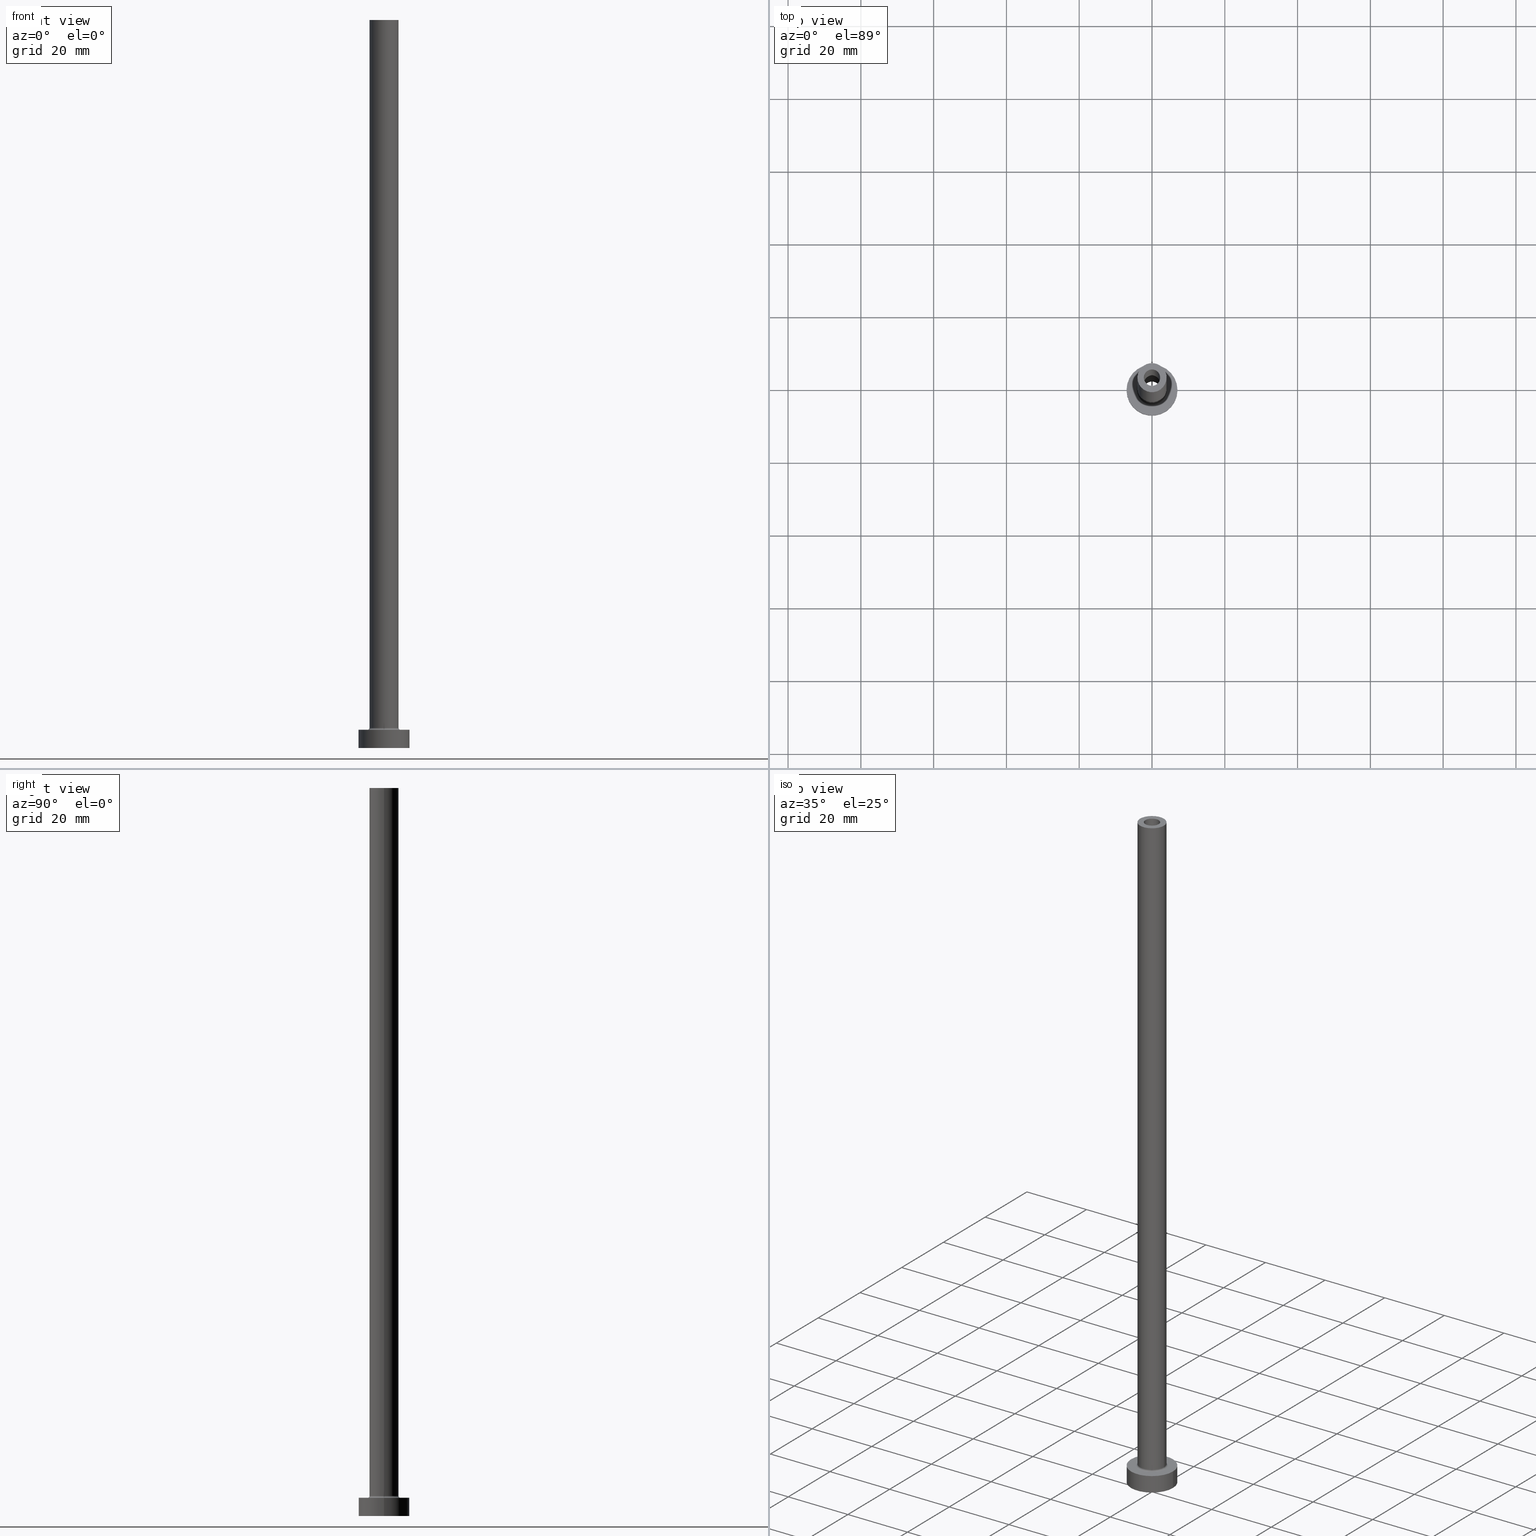
[diagram: canonical four-view strip — front | top / right | iso, engineering-drawing reading convention]
A machine part, canonical four-view strip (front | top / right | iso — engineering-drawing reading convention). The complete STEP part file that produces these views, byte-faithful:
ISO-10303-21;
HEADER;
FILE_DESCRIPTION (( 'STEP AP203' ),
    '1' );
FILE_NAME ('907d.STEP',
    '2023-02-13T11:04:43',
    ( '' ),
    ( '' ),
    'SwSTEP 2.0',
    'SolidWorks 2019',
    '' );
FILE_SCHEMA (( 'CONFIG_CONTROL_DESIGN' ));
ENDSEC;

DATA;
#1 = ADVANCED_FACE ( 'NONE', ( #115 ), #256, .F. ) ;
#2 = AXIS2_PLACEMENT_3D ( 'NONE', #110, #386, #191 ) ;
#3 = CARTESIAN_POINT ( 'NONE',  ( 0.000000000000000000, 0.000000000000000000, 200.0000000000000000 ) ) ;
#4 = AXIS2_PLACEMENT_3D ( 'NONE', #228, #264, #330 ) ;
#5 = CARTESIAN_POINT ( 'NONE',  ( -4.000000000000000000, 0.000000000000000000, 200.0000000000000000 ) ) ;
#6 = ORGANIZATION ( 'NEUR�EN�', 'NEUR�EN�', '' ) ;
#7 = EDGE_CURVE ( 'NONE', #281, #452, #248, .T. ) ;
#8 = ORIENTED_EDGE ( 'NONE', *, *, #190, .T. ) ;
#9 = APPROVAL_STATUS ( 'not_yet_approved' ) ;
#10 = DIRECTION ( 'NONE',  ( 1.000000000000000000, 0.000000000000000000, -0.000000000000000000 ) ) ;
#11 = PERSON_AND_ORGANIZATION_ROLE ( 'creator' ) ;
#12 = EDGE_CURVE ( 'NONE', #452, #347, #345, .T. ) ;
#13 = CIRCLE ( 'NONE', #457, 4.500000000000000888 ) ;
#14 = FACE_OUTER_BOUND ( 'NONE', #298, .T. ) ;
#15 = VERTEX_POINT ( 'NONE', #35 ) ;
#16 = ORIENTED_EDGE ( 'NONE', *, *, #60, .T. ) ;
#17 = PERSON_AND_ORGANIZATION_ROLE ( 'design_owner' ) ;
#18 = CARTESIAN_POINT ( 'NONE',  ( 0.000000000000000000, 0.000000000000000000, 5.000000000000000000 ) ) ;
#19 = VERTEX_POINT ( 'NONE', #49 ) ;
#20 = CARTESIAN_POINT ( 'NONE',  ( 0.000000000000000000, 0.000000000000000000, 200.0000000000000000 ) ) ;
#21 = CIRCLE ( 'NONE', #36, 2.250000000000000000 ) ;
#22 = CC_DESIGN_DATE_AND_TIME_ASSIGNMENT ( #381, #66, ( #54 ) ) ;
#23 = EDGE_LOOP ( 'NONE', ( #107, #371 ) ) ;
#24 =( GEOMETRIC_REPRESENTATION_CONTEXT ( 3 ) GLOBAL_UNCERTAINTY_ASSIGNED_CONTEXT ( ( #34 ) ) GLOBAL_UNIT_ASSIGNED_CONTEXT ( ( #38, #290, #351 ) ) REPRESENTATION_CONTEXT ( 'NONE', 'WORKASPACE' ) );
#25 = DIRECTION ( 'NONE',  ( 1.000000000000000000, 0.000000000000000000, 0.000000000000000000 ) ) ;
#26 = EDGE_LOOP ( 'NONE', ( #177, #88, #331, #413 ) ) ;
#27 = APPROVAL_STATUS ( 'not_yet_approved' ) ;
#28 = DIRECTION ( 'NONE',  ( -1.000000000000000000, 0.000000000000000000, 0.000000000000000000 ) ) ;
#29 = EDGE_LOOP ( 'NONE', ( #179, #308 ) ) ;
#30 = CC_DESIGN_PERSON_AND_ORGANIZATION_ASSIGNMENT ( #126, #266, ( #385 ) ) ;
#31 = ORIENTED_EDGE ( 'NONE', *, *, #60, .F. ) ;
#32 = VECTOR ( 'NONE', #323, 1000.000000000000000 ) ;
#33 = DIRECTION ( 'NONE',  ( -1.000000000000000000, 0.000000000000000000, 0.000000000000000000 ) ) ;
#34 = UNCERTAINTY_MEASURE_WITH_UNIT (LENGTH_MEASURE( 1.000000000000000082E-05 ), #38, 'distance_accuracy_value', 'NONE');
#35 = CARTESIAN_POINT ( 'NONE',  ( -4.000000000000000000, 0.000000000000000000, 200.0000000000000000 ) ) ;
#36 = AXIS2_PLACEMENT_3D ( 'NONE', #171, #232, #59 ) ;
#37 = EDGE_CURVE ( 'NONE', #199, #125, #268, .T. ) ;
#38 =( LENGTH_UNIT ( ) NAMED_UNIT ( * ) SI_UNIT ( .MILLI., .METRE. ) );
#39 = AXIS2_PLACEMENT_3D ( 'NONE', #114, #220, #319 ) ;
#40 = LINE ( 'NONE', #75, #184 ) ;
#41 = CARTESIAN_POINT ( 'NONE',  ( 4.500000000000000888, 0.000000000000000000, 5.000000000000002665 ) ) ;
#42 = DESIGN_CONTEXT ( 'detailed design', #178, 'design' ) ;
#43 = DIRECTION ( 'NONE',  ( -0.000000000000000000, -0.000000000000000000, -1.000000000000000000 ) ) ;
#44 = DIRECTION ( 'NONE',  ( 0.000000000000000000, 0.000000000000000000, 1.000000000000000000 ) ) ;
#45 = ADVANCED_FACE ( 'NONE', ( #352 ), #390, .F. ) ;
#46 = EDGE_LOOP ( 'NONE', ( #278, #393, #77, #72 ) ) ;
#47 = CIRCLE ( 'NONE', #214, 4.000000000000000000 ) ;
#48 = APPROVAL_PERSON_ORGANIZATION ( #166, #255, #400 ) ;
#49 = CARTESIAN_POINT ( 'NONE',  ( 4.000000000000000000, 4.898587196589412829E-16, 5.500000000000005329 ) ) ;
#50 = ADVANCED_FACE ( 'NONE', ( #355 ), #233, .F. ) ;
#51 = APPROVAL_ROLE ( '' ) ;
#52 = PLANE ( 'NONE',  #4 ) ;
#53 = FACE_OUTER_BOUND ( 'NONE', #410, .T. ) ;
#54 = SECURITY_CLASSIFICATION ( '', '', #403 ) ;
#55 = COORDINATED_UNIVERSAL_TIME_OFFSET ( 1, 0, .AHEAD. ) ;
#56 = DIRECTION ( 'NONE',  ( 1.000000000000000000, 0.000000000000000000, 0.000000000000000000 ) ) ;
#57 = ORIENTED_EDGE ( 'NONE', *, *, #343, .F. ) ;
#58 = CLOSED_SHELL ( 'NONE', ( #439, #420, #106, #405, #356, #448, #122, #384, #80, #117, #50, #45, #265, #1 ) ) ;
#59 = DIRECTION ( 'NONE',  ( 1.000000000000000000, 0.000000000000000000, 0.000000000000000000 ) ) ;
#60 = EDGE_CURVE ( 'NONE', #239, #199, #40, .T. ) ;
#61 = EDGE_LOOP ( 'NONE', ( #408, #418, #312, #132 ) ) ;
#62 = PERSON_AND_ORGANIZATION ( #157, #6 ) ;
#63 = DIRECTION ( 'NONE',  ( 1.000000000000000000, 0.000000000000000000, 0.000000000000000000 ) ) ;
#64 = AXIS2_PLACEMENT_3D ( 'NONE', #18, #164, #237 ) ;
#65 = VERTEX_POINT ( 'NONE', #258 ) ;
#66 = DATE_TIME_ROLE ( 'classification_date' ) ;
#67 = EDGE_LOOP ( 'NONE', ( #202, #109 ) ) ;
#68 = PRODUCT_DEFINITION_SHAPE ( 'NONE', 'NONE',  #207 ) ;
#69 = EDGE_CURVE ( 'NONE', #94, #318, #211, .T. ) ;
#70 = CARTESIAN_POINT ( 'NONE',  ( 0.000000000000000000, 0.000000000000000000, 0.000000000000000000 ) ) ;
#71 = AXIS2_PLACEMENT_3D ( 'NONE', #210, #151, #454 ) ;
#72 = ORIENTED_EDGE ( 'NONE', *, *, #389, .F. ) ;
#73 = DIRECTION ( 'NONE',  ( 0.000000000000000000, 0.000000000000000000, 1.000000000000000000 ) ) ;
#74 = CIRCLE ( 'NONE', #200, 2.250000000000000000 ) ;
#75 = CARTESIAN_POINT ( 'NONE',  ( 7.000000000000000000, 8.572527594031473190E-16, 5.000000000000000000 ) ) ;
#76 = AXIS2_PLACEMENT_3D ( 'NONE', #357, #293, #320 ) ;
#77 = ORIENTED_EDGE ( 'NONE', *, *, #12, .T. ) ;
#78 = AXIS2_PLACEMENT_3D ( 'NONE', #422, #112, #251 ) ;
#79 = CARTESIAN_POINT ( 'NONE',  ( -2.250000000000000000, 0.000000000000000000, 200.0000000000000000 ) ) ;
#80 = ADVANCED_FACE ( 'NONE', ( #144 ), #283, .T. ) ;
#81 = FACE_OUTER_BOUND ( 'NONE', #302, .T. ) ;
#82 = CARTESIAN_POINT ( 'NONE',  ( -4.500000000000000888, 5.510910596163089556E-16, 5.500000000000005329 ) ) ;
#83 = CARTESIAN_POINT ( 'NONE',  ( 0.000000000000000000, 0.000000000000000000, 200.0000000000000000 ) ) ;
#84 = CARTESIAN_POINT ( 'NONE',  ( -2.250000000000000000, 0.000000000000000000, 200.0000000000000000 ) ) ;
#85 = CARTESIAN_POINT ( 'NONE',  ( 0.000000000000000000, 0.000000000000000000, 5.000000000000000000 ) ) ;
#86 = CARTESIAN_POINT ( 'NONE',  ( -2.399999999999999911, 0.000000000000000000, 155.0000000000000284 ) ) ;
#87 = AXIS2_PLACEMENT_3D ( 'NONE', #387, #315, #287 ) ;
#88 = ORIENTED_EDGE ( 'NONE', *, *, #195, .T. ) ;
#89 = CIRCLE ( 'NONE', #337, 4.000000000000000000 ) ;
#90 = APPROVAL_PERSON_ORGANIZATION ( #62, #93, #450 ) ;
#91 = EDGE_LOOP ( 'NONE', ( #377, #16, #103, #368 ) ) ;
#92 = DIRECTION ( 'NONE',  ( 0.000000000000000000, 0.000000000000000000, 1.000000000000000000 ) ) ;
#93 = APPROVAL ( #27, 'NEUR�EN�' ) ;
#94 = VERTEX_POINT ( 'NONE', #253 ) ;
#95 = DIRECTION ( 'NONE',  ( 0.000000000000000000, 0.000000000000000000, -1.000000000000000000 ) ) ;
#96 = APPROVAL_DATE_TIME ( #272, #255 ) ;
#97 = DIRECTION ( 'NONE',  ( 0.000000000000000000, 0.000000000000000000, 1.000000000000000000 ) ) ;
#98 = ORIENTED_EDGE ( 'NONE', *, *, #349, .T. ) ;
#99 = EDGE_CURVE ( 'NONE', #310, #239, #159, .T. ) ;
#100 = ORIENTED_EDGE ( 'NONE', *, *, #276, .F. ) ;
#101 = PERSON_AND_ORGANIZATION_ROLE ( 'classification_officer' ) ;
#102 = CARTESIAN_POINT ( 'NONE',  ( -7.000000000000000000, 0.000000000000000000, 0.000000000000000000 ) ) ;
#103 = ORIENTED_EDGE ( 'NONE', *, *, #37, .T. ) ;
#104 = AXIS2_PLACEMENT_3D ( 'NONE', #460, #149, #56 ) ;
#105 = AXIS2_PLACEMENT_3D ( 'NONE', #336, #404, #327 ) ;
#106 = ADVANCED_FACE ( 'NONE', ( #81 ), #127, .F. ) ;
#107 = ORIENTED_EDGE ( 'NONE', *, *, #343, .T. ) ;
#108 = PLANE ( 'NONE',  #407 ) ;
#109 = ORIENTED_EDGE ( 'NONE', *, *, #69, .F. ) ;
#110 = CARTESIAN_POINT ( 'NONE',  ( 0.000000000000000000, 0.000000000000000000, 0.000000000000000000 ) ) ;
#111 = CIRCLE ( 'NONE', #250, 4.000000000000000000 ) ;
#112 = DIRECTION ( 'NONE',  ( -0.000000000000000000, -0.000000000000000000, -1.000000000000000000 ) ) ;
#113 = AXIS2_PLACEMENT_3D ( 'NONE', #284, #188, #424 ) ;
#114 = CARTESIAN_POINT ( 'NONE',  ( 4.500000000000000888, 0.000000000000000000, 5.500000000000005329 ) ) ;
#115 = FACE_OUTER_BOUND ( 'NONE', #61, .T. ) ;
#116 = DIRECTION ( 'NONE',  ( 1.000000000000000000, 0.000000000000000000, 0.000000000000000000 ) ) ;
#117 = ADVANCED_FACE ( 'NONE', ( #317, #14 ), #134, .T. ) ;
#118 = DIRECTION ( 'NONE',  ( 0.000000000000000000, 0.000000000000000000, -1.000000000000000000 ) ) ;
#119 = VECTOR ( 'NONE', #215, 1000.000000000000000 ) ;
#120 = DATE_TIME_ROLE ( 'creation_date' ) ;
#121 = AXIS2_PLACEMENT_3D ( 'NONE', #82, #257, #219 ) ;
#122 = ADVANCED_FACE ( 'NONE', ( #301, #303 ), #299, .T. ) ;
#123 = DIRECTION ( 'NONE',  ( 1.000000000000000000, 0.000000000000000000, -0.000000000000000000 ) ) ;
#124 = AXIS2_PLACEMENT_3D ( 'NONE', #280, #378, #155 ) ;
#125 = VERTEX_POINT ( 'NONE', #102 ) ;
#126 = PERSON_AND_ORGANIZATION ( #157, #6 ) ;
#127 = TOROIDAL_SURFACE ( 'NONE', #104, 4.500000000000000888, 0.5000000000000000000 ) ;
#128 = AXIS2_PLACEMENT_3D ( 'NONE', #419, #142, #33 ) ;
#129 = ORIENTED_EDGE ( 'NONE', *, *, #225, .T. ) ;
#130 = CARTESIAN_POINT ( 'NONE',  ( 0.000000000000000000, 0.000000000000000000, 155.0000000000000284 ) ) ;
#131 = PRODUCT_RELATED_PRODUCT_CATEGORY ( 'detail', '', ( #240 ) ) ;
#132 = ORIENTED_EDGE ( 'NONE', *, *, #150, .F. ) ;
#133 = AXIS2_PLACEMENT_3D ( 'NONE', #70, #447, #25 ) ;
#134 = PLANE ( 'NONE',  #353 ) ;
#135 = EDGE_LOOP ( 'NONE', ( #31, #197, #226, #129 ) ) ;
#136 = EDGE_LOOP ( 'NONE', ( #213, #334 ) ) ;
#137 = COORDINATED_UNIVERSAL_TIME_OFFSET ( 1, 0, .AHEAD. ) ;
#138 = CYLINDRICAL_SURFACE ( 'NONE', #354, 4.000000000000000000 ) ;
#139 = EDGE_LOOP ( 'NONE', ( #305, #341, #307, #437 ) ) ;
#140 = CARTESIAN_POINT ( 'NONE',  ( 0.000000000000000000, 0.000000000000000000, 0.000000000000000000 ) ) ;
#141 = ORIENTED_EDGE ( 'NONE', *, *, #316, .T. ) ;
#142 = DIRECTION ( 'NONE',  ( 0.000000000000000000, 0.000000000000000000, -1.000000000000000000 ) ) ;
#143 = DIRECTION ( 'NONE',  ( 1.000000000000000000, 0.000000000000000000, -0.000000000000000000 ) ) ;
#144 = FACE_OUTER_BOUND ( 'NONE', #444, .T. ) ;
#145 = DIRECTION ( 'NONE',  ( 1.000000000000000000, 0.000000000000000000, 0.000000000000000000 ) ) ;
#146 = CIRCLE ( 'NONE', #121, 0.5000000000000004441 ) ;
#147 = CARTESIAN_POINT ( 'NONE',  ( 2.399999999999999911, 2.939152317953647106E-16, 161.7882250993908997 ) ) ;
#148 = CARTESIAN_POINT ( 'NONE',  ( 2.250000000000000000, 2.755455298081543792E-16, 155.0000000000000284 ) ) ;
#149 = DIRECTION ( 'NONE',  ( 0.000000000000000000, 0.000000000000000000, 1.000000000000000000 ) ) ;
#150 = EDGE_CURVE ( 'NONE', #432, #165, #443, .T. ) ;
#151 = DIRECTION ( 'NONE',  ( 0.000000000000000000, 0.000000000000000000, 1.000000000000000000 ) ) ;
#152 = FACE_OUTER_BOUND ( 'NONE', #135, .T. ) ;
#153 = CARTESIAN_POINT ( 'NONE',  ( -7.000000000000000000, 0.000000000000000000, 5.000000000000000000 ) ) ;
#154 = AXIS2_PLACEMENT_3D ( 'NONE', #85, #43, #394 ) ;
#155 = DIRECTION ( 'NONE',  ( -1.000000000000000000, 0.000000000000000000, 0.000000000000000000 ) ) ;
#156 = APPROVAL_PERSON_ORGANIZATION ( #262, #326, #51 ) ;
#157 = PERSON ( 'NEUR�EN�', 'NEUR�EN�', 'NEUR�EN�', ('NEUR�EN�'), ('NEUR�EN�'), ('NEUR�EN�') ) ;
#158 = CALENDAR_DATE ( 2023, 13, 2 ) ;
#159 = CIRCLE ( 'NONE', #87, 7.000000000000000000 ) ;
#160 = CALENDAR_DATE ( 2023, 13, 2 ) ;
#161 = EDGE_CURVE ( 'NONE', #65, #446, #304, .T. ) ;
#162 = ORIENTED_EDGE ( 'NONE', *, *, #289, .F. ) ;
#163 = CIRCLE ( 'NONE', #105, 7.000000000000000000 ) ;
#164 = DIRECTION ( 'NONE',  ( -0.000000000000000000, -0.000000000000000000, -1.000000000000000000 ) ) ;
#165 = VERTEX_POINT ( 'NONE', #401 ) ;
#166 = PERSON_AND_ORGANIZATION ( #157, #6 ) ;
#167 = EDGE_CURVE ( 'NONE', #245, #15, #111, .T. ) ;
#168 = CARTESIAN_POINT ( 'NONE',  ( 0.000000000000000000, 0.000000000000000000, 0.000000000000000000 ) ) ;
#169 = EDGE_LOOP ( 'NONE', ( #279, #8 ) ) ;
#170 = AXIS2_PLACEMENT_3D ( 'NONE', #168, #193, #63 ) ;
#171 = CARTESIAN_POINT ( 'NONE',  ( 0.000000000000000000, 0.000000000000000000, 155.0000000000000284 ) ) ;
#172 = ORIENTED_EDGE ( 'NONE', *, *, #316, .F. ) ;
#173 = ORIENTED_EDGE ( 'NONE', *, *, #167, .T. ) ;
#174 = APPROVAL_DATE_TIME ( #246, #93 ) ;
#175 = DIRECTION ( 'NONE',  ( -0.000000000000000000, -0.000000000000000000, -1.000000000000000000 ) ) ;
#176 = CC_DESIGN_PERSON_AND_ORGANIZATION_ASSIGNMENT ( #411, #101, ( #54 ) ) ;
#177 = ORIENTED_EDGE ( 'NONE', *, *, #7, .F. ) ;
#178 = APPLICATION_CONTEXT ( 'configuration controlled 3d designs of mechanical parts and assemblies' ) ;
#179 = ORIENTED_EDGE ( 'NONE', *, *, #276, .T. ) ;
#180 = DIRECTION ( 'NONE',  ( -1.000000000000000000, 0.000000000000000000, 0.000000000000000000 ) ) ;
#181 = DIRECTION ( 'NONE',  ( -0.000000000000000000, -0.000000000000000000, -1.000000000000000000 ) ) ;
#182 = EDGE_CURVE ( 'NONE', #358, #281, #206, .T. ) ;
#183 = MECHANICAL_CONTEXT ( 'NONE', #218, 'mechanical' ) ;
#184 = VECTOR ( 'NONE', #181, 1000.000000000000000 ) ;
#185 = CYLINDRICAL_SURFACE ( 'NONE', #113, 7.000000000000000000 ) ;
#186 = AXIS2_PLACEMENT_3D ( 'NONE', #445, #92, #406 ) ;
#187 = ORIENTED_EDGE ( 'NONE', *, *, #333, .T. ) ;
#188 = DIRECTION ( 'NONE',  ( -0.000000000000000000, -0.000000000000000000, -1.000000000000000000 ) ) ;
#189 = DIRECTION ( 'NONE',  ( -0.000000000000000000, -0.000000000000000000, -1.000000000000000000 ) ) ;
#190 = EDGE_CURVE ( 'NONE', #239, #310, #163, .T. ) ;
#191 = DIRECTION ( 'NONE',  ( 1.000000000000000000, 0.000000000000000000, 0.000000000000000000 ) ) ;
#192 = DATE_AND_TIME ( #362, #376 ) ;
#193 = DIRECTION ( 'NONE',  ( 0.000000000000000000, 0.000000000000000000, 1.000000000000000000 ) ) ;
#194 = PERSON_AND_ORGANIZATION ( #157, #6 ) ;
#195 = EDGE_CURVE ( 'NONE', #281, #358, #382, .T. ) ;
#196 = DIRECTION ( 'NONE',  ( 0.000000000000000000, 0.000000000000000000, 1.000000000000000000 ) ) ;
#197 = ORIENTED_EDGE ( 'NONE', *, *, #99, .F. ) ;
#198 = DIRECTION ( 'NONE',  ( 0.000000000000000000, 0.000000000000000000, 1.000000000000000000 ) ) ;
#199 = VERTEX_POINT ( 'NONE', #224 ) ;
#200 = AXIS2_PLACEMENT_3D ( 'NONE', #252, #44, #116 ) ;
#201 = EDGE_CURVE ( 'NONE', #310, #125, #365, .T. ) ;
#202 = ORIENTED_EDGE ( 'NONE', *, *, #309, .F. ) ;
#203 = DIRECTION ( 'NONE',  ( -0.000000000000000000, -0.000000000000000000, -1.000000000000000000 ) ) ;
#204 = ORIENTED_EDGE ( 'NONE', *, *, #309, .T. ) ;
#205 = ORIENTED_EDGE ( 'NONE', *, *, #182, .F. ) ;
#206 = CIRCLE ( 'NONE', #359, 2.399999999999999911 ) ;
#207 = PRODUCT_DEFINITION ( 'NEZN�M�', '', #385, #42 ) ;
#208 = CARTESIAN_POINT ( 'NONE',  ( 0.000000000000000000, 0.000000000000000000, 200.0000000000000000 ) ) ;
#209 = DIRECTION ( 'NONE',  ( 0.000000000000000000, 0.000000000000000000, 1.000000000000000000 ) ) ;
#210 = CARTESIAN_POINT ( 'NONE',  ( 0.000000000000000000, 0.000000000000000000, 0.000000000000000000 ) ) ;
#211 = CIRCLE ( 'NONE', #440, 2.250000000000000000 ) ;
#212 = CARTESIAN_POINT ( 'NONE',  ( 0.000000000000000000, 0.000000000000000000, 5.000000000000000000 ) ) ;
#213 = ORIENTED_EDGE ( 'NONE', *, *, #398, .F. ) ;
#214 = AXIS2_PLACEMENT_3D ( 'NONE', #269, #97, #332 ) ;
#215 = DIRECTION ( 'NONE',  ( 0.000000000000000000, 0.000000000000000000, -1.000000000000000000 ) ) ;
#216 = FACE_OUTER_BOUND ( 'NONE', #346, .T. ) ;
#217 = CYLINDRICAL_SURFACE ( 'NONE', #154, 7.000000000000000000 ) ;
#218 = APPLICATION_CONTEXT ( 'configuration controlled 3d designs of mechanical parts and assemblies' ) ;
#219 = DIRECTION ( 'NONE',  ( -1.000000000000000000, 1.224646799147351482E-16, 0.000000000000000000 ) ) ;
#220 = DIRECTION ( 'NONE',  ( 0.000000000000000000, -1.000000000000000000, 0.000000000000000000 ) ) ;
#221 = CC_DESIGN_PERSON_AND_ORGANIZATION_ASSIGNMENT ( #227, #11, ( #385 ) ) ;
#222 = AXIS2_PLACEMENT_3D ( 'NONE', #412, #196, #123 ) ;
#223 = PERSON_AND_ORGANIZATION ( #157, #6 ) ;
#224 = CARTESIAN_POINT ( 'NONE',  ( 7.000000000000000000, 8.572527594031473190E-16, 0.000000000000000000 ) ) ;
#225 = EDGE_CURVE ( 'NONE', #125, #199, #434, .T. ) ;
#226 = ORIENTED_EDGE ( 'NONE', *, *, #201, .T. ) ;
#227 = PERSON_AND_ORGANIZATION ( #157, #6 ) ;
#228 = CARTESIAN_POINT ( 'NONE',  ( 0.000000000000000000, 0.000000000000000000, 155.0000000000000284 ) ) ;
#229 = APPROVAL_STATUS ( 'not_yet_approved' ) ;
#230 = CARTESIAN_POINT ( 'NONE',  ( 7.000000000000000000, 8.572527594031473190E-16, 5.000000000000000000 ) ) ;
#231 = ORIENTED_EDGE ( 'NONE', *, *, #37, .F. ) ;
#232 = DIRECTION ( 'NONE',  ( 0.000000000000000000, 0.000000000000000000, 1.000000000000000000 ) ) ;
#233 = TOROIDAL_SURFACE ( 'NONE', #379, 4.500000000000000888, 0.5000000000000000000 ) ;
#234 = ORIENTED_EDGE ( 'NONE', *, *, #333, .F. ) ;
#235 = CALENDAR_DATE ( 2023, 13, 2 ) ;
#236 = FACE_OUTER_BOUND ( 'NONE', #338, .T. ) ;
#237 = DIRECTION ( 'NONE',  ( 1.000000000000000000, 0.000000000000000000, 0.000000000000000000 ) ) ;
#238 = EDGE_CURVE ( 'NONE', #19, #396, #47, .T. ) ;
#239 = VERTEX_POINT ( 'NONE', #230 ) ;
#240 = PRODUCT ( '907d', '907d', '', ( #183 ) ) ;
#241 = AXIS2_PLACEMENT_3D ( 'NONE', #267, #198, #277 ) ;
#242 = CC_DESIGN_APPROVAL ( #326, ( #385 ) ) ;
#243 = EDGE_LOOP ( 'NONE', ( #328, #141, #374, #275 ) ) ;
#244 = ADVANCED_BREP_SHAPE_REPRESENTATION ( '907d', ( #329, #76 ), #24 ) ;
#245 = VERTEX_POINT ( 'NONE', #435 ) ;
#246 = DATE_AND_TIME ( #235, #340 ) ;
#247 = EDGE_CURVE ( 'NONE', #94, #432, #367, .T. ) ;
#248 = LINE ( 'NONE', #147, #119 ) ;
#249 = FACE_OUTER_BOUND ( 'NONE', #46, .T. ) ;
#250 = AXIS2_PLACEMENT_3D ( 'NONE', #20, #297, #370 ) ;
#251 = DIRECTION ( 'NONE',  ( -1.000000000000000000, 0.000000000000000000, 0.000000000000000000 ) ) ;
#252 = CARTESIAN_POINT ( 'NONE',  ( 0.000000000000000000, 0.000000000000000000, 200.0000000000000000 ) ) ;
#253 = CARTESIAN_POINT ( 'NONE',  ( 2.250000000000000000, 2.755455298081543792E-16, 200.0000000000000000 ) ) ;
#254 = CARTESIAN_POINT ( 'NONE',  ( -2.399999999999999911, 0.000000000000000000, 0.000000000000000000 ) ) ;
#255 = APPROVAL ( #9, 'NEUR�EN�' ) ;
#256 = CYLINDRICAL_SURFACE ( 'NONE', #363, 2.250000000000000000 ) ;
#257 = DIRECTION ( 'NONE',  ( 1.224646799147353207E-16, 1.000000000000000000, -0.000000000000000000 ) ) ;
#258 = CARTESIAN_POINT ( 'NONE',  ( -4.500000000000000888, 5.510910596163088569E-16, 5.000000000000002665 ) ) ;
#259 = CC_DESIGN_DATE_AND_TIME_ASSIGNMENT ( #296, #120, ( #207 ) ) ;
#260 = ORIENTED_EDGE ( 'NONE', *, *, #225, .F. ) ;
#261 = VECTOR ( 'NONE', #95, 1000.000000000000000 ) ;
#262 = PERSON_AND_ORGANIZATION ( #157, #6 ) ;
#263 = CIRCLE ( 'NONE', #39, 0.5000000000000004441 ) ;
#264 = DIRECTION ( 'NONE',  ( 0.000000000000000000, 0.000000000000000000, 1.000000000000000000 ) ) ;
#265 = ADVANCED_FACE ( 'NONE', ( #409, #53 ), #52, .F. ) ;
#266 = PERSON_AND_ORGANIZATION_ROLE ( 'design_supplier' ) ;
#267 = CARTESIAN_POINT ( 'NONE',  ( 0.000000000000000000, 0.000000000000000000, 155.0000000000000284 ) ) ;
#268 = CIRCLE ( 'NONE', #71, 7.000000000000000000 ) ;
#269 = CARTESIAN_POINT ( 'NONE',  ( 0.000000000000000000, 0.000000000000000000, 5.500000000000005329 ) ) ;
#270 = VECTOR ( 'NONE', #175, 1000.000000000000000 ) ;
#271 = ORIENTED_EDGE ( 'NONE', *, *, #430, .F. ) ;
#272 = DATE_AND_TIME ( #160, #459 ) ;
#273 = DIRECTION ( 'NONE',  ( 1.000000000000000000, 0.000000000000000000, 0.000000000000000000 ) ) ;
#274 = CC_DESIGN_SECURITY_CLASSIFICATION ( #54, ( #385 ) ) ;
#275 = ORIENTED_EDGE ( 'NONE', *, *, #361, .F. ) ;
#276 = EDGE_CURVE ( 'NONE', #165, #432, #21, .T. ) ;
#277 = DIRECTION ( 'NONE',  ( 1.000000000000000000, 0.000000000000000000, 0.000000000000000000 ) ) ;
#278 = ORIENTED_EDGE ( 'NONE', *, *, #182, .T. ) ;
#279 = ORIENTED_EDGE ( 'NONE', *, *, #99, .T. ) ;
#280 = CARTESIAN_POINT ( 'NONE',  ( 0.000000000000000000, 0.000000000000000000, 161.7882250993908997 ) ) ;
#281 = VERTEX_POINT ( 'NONE', #306 ) ;
#282 = CARTESIAN_POINT ( 'NONE',  ( -2.399999999999999911, 0.000000000000000000, 161.7882250993908997 ) ) ;
#283 = CYLINDRICAL_SURFACE ( 'NONE', #78, 4.000000000000000000 ) ;
#284 = CARTESIAN_POINT ( 'NONE',  ( 0.000000000000000000, 0.000000000000000000, 5.000000000000000000 ) ) ;
#285 = VECTOR ( 'NONE', #431, 1000.000000000000000 ) ;
#286 = CC_DESIGN_APPROVAL ( #255, ( #207 ) ) ;
#287 = DIRECTION ( 'NONE',  ( 1.000000000000000000, 0.000000000000000000, 0.000000000000000000 ) ) ;
#288 = LINE ( 'NONE', #84, #32 ) ;
#289 = EDGE_CURVE ( 'NONE', #396, #19, #397, .T. ) ;
#290 =( NAMED_UNIT ( * ) PLANE_ANGLE_UNIT ( ) SI_UNIT ( $, .RADIAN. ) );
#291 = CARTESIAN_POINT ( 'NONE',  ( 4.000000000000000000, 4.898587196589412829E-16, 200.0000000000000000 ) ) ;
#292 = CARTESIAN_POINT ( 'NONE',  ( 0.000000000000000000, 0.000000000000000000, 5.500000000000005329 ) ) ;
#293 = DIRECTION ( 'NONE',  ( 0.000000000000000000, 0.000000000000000000, 1.000000000000000000 ) ) ;
#294 = DIRECTION ( 'NONE',  ( 0.000000000000000000, 0.000000000000000000, 1.000000000000000000 ) ) ;
#295 = LINE ( 'NONE', #291, #285 ) ;
#296 = DATE_AND_TIME ( #158, #360 ) ;
#297 = DIRECTION ( 'NONE',  ( 0.000000000000000000, 0.000000000000000000, 1.000000000000000000 ) ) ;
#298 = EDGE_LOOP ( 'NONE', ( #187, #173 ) ) ;
#299 = PLANE ( 'NONE',  #222 ) ;
#300 = COORDINATED_UNIVERSAL_TIME_OFFSET ( 1, 0, .AHEAD. ) ;
#301 = FACE_BOUND ( 'NONE', #23, .T. ) ;
#302 = EDGE_LOOP ( 'NONE', ( #162, #98, #57, #417 ) ) ;
#303 = FACE_OUTER_BOUND ( 'NONE', #169, .T. ) ;
#304 = CIRCLE ( 'NONE', #64, 4.500000000000000888 ) ;
#305 = ORIENTED_EDGE ( 'NONE', *, *, #349, .F. ) ;
#306 = CARTESIAN_POINT ( 'NONE',  ( 2.399999999999999911, 2.939152317953647106E-16, 155.0000000000000284 ) ) ;
#307 = ORIENTED_EDGE ( 'NONE', *, *, #427, .T. ) ;
#308 = ORIENTED_EDGE ( 'NONE', *, *, #150, .T. ) ;
#309 = EDGE_CURVE ( 'NONE', #318, #94, #74, .T. ) ;
#310 = VERTEX_POINT ( 'NONE', #153 ) ;
#311 = LOCAL_TIME ( 12, 4, 43.00000000000000000, #414 ) ;
#312 = ORIENTED_EDGE ( 'NONE', *, *, #430, .T. ) ;
#313 = DIRECTION ( 'NONE',  ( 1.000000000000000000, 0.000000000000000000, 0.000000000000000000 ) ) ;
#314 = CARTESIAN_POINT ( 'NONE',  ( 0.000000000000000000, 0.000000000000000000, 5.500000000000005329 ) ) ;
#315 = DIRECTION ( 'NONE',  ( 0.000000000000000000, 0.000000000000000000, 1.000000000000000000 ) ) ;
#316 = EDGE_CURVE ( 'NONE', #245, #19, #295, .T. ) ;
#317 = FACE_BOUND ( 'NONE', #67, .T. ) ;
#318 = VERTEX_POINT ( 'NONE', #79 ) ;
#319 = DIRECTION ( 'NONE',  ( 0.000000000000000000, 0.000000000000000000, -1.000000000000000000 ) ) ;
#320 = DIRECTION ( 'NONE',  ( 1.000000000000000000, 0.000000000000000000, 0.000000000000000000 ) ) ;
#321 = LINE ( 'NONE', #5, #270 ) ;
#322 = VECTOR ( 'NONE', #375, 1000.000000000000000 ) ;
#323 = DIRECTION ( 'NONE',  ( 0.000000000000000000, 0.000000000000000000, -1.000000000000000000 ) ) ;
#324 = DIRECTION ( 'NONE',  ( 0.000000000000000000, 0.000000000000000000, 1.000000000000000000 ) ) ;
#325 = APPROVAL_DATE_TIME ( #192, #326 ) ;
#326 = APPROVAL ( #229, 'NEUR�EN�' ) ;
#327 = DIRECTION ( 'NONE',  ( 1.000000000000000000, 0.000000000000000000, 0.000000000000000000 ) ) ;
#328 = ORIENTED_EDGE ( 'NONE', *, *, #167, .F. ) ;
#329 = MANIFOLD_SOLID_BREP ( 'Odebrat vysunut�m4', #58 ) ;
#330 = DIRECTION ( 'NONE',  ( 1.000000000000000000, 0.000000000000000000, -0.000000000000000000 ) ) ;
#331 = ORIENTED_EDGE ( 'NONE', *, *, #389, .T. ) ;
#332 = DIRECTION ( 'NONE',  ( 1.000000000000000000, 0.000000000000000000, 0.000000000000000000 ) ) ;
#333 = EDGE_CURVE ( 'NONE', #15, #245, #89, .T. ) ;
#334 = ORIENTED_EDGE ( 'NONE', *, *, #12, .F. ) ;
#335 = SHAPE_DEFINITION_REPRESENTATION ( #68, #244 ) ;
#336 = CARTESIAN_POINT ( 'NONE',  ( 0.000000000000000000, 0.000000000000000000, 5.000000000000000000 ) ) ;
#337 = AXIS2_PLACEMENT_3D ( 'NONE', #388, #294, #428 ) ;
#338 = EDGE_LOOP ( 'NONE', ( #260, #231 ) ) ;
#339 = CARTESIAN_POINT ( 'NONE',  ( -4.000000000000000000, 0.000000000000000000, 5.500000000000005329 ) ) ;
#340 = LOCAL_TIME ( 12, 4, 43.00000000000000000, #137 ) ;
#341 = ORIENTED_EDGE ( 'NONE', *, *, #238, .F. ) ;
#342 = CALENDAR_DATE ( 2023, 13, 2 ) ;
#343 = EDGE_CURVE ( 'NONE', #446, #65, #13, .T. ) ;
#344 = LINE ( 'NONE', #282, #322 ) ;
#345 = CIRCLE ( 'NONE', #2, 2.399999999999999911 ) ;
#346 = EDGE_LOOP ( 'NONE', ( #204, #399, #100, #271 ) ) ;
#347 = VERTEX_POINT ( 'NONE', #254 ) ;
#348 = CC_DESIGN_APPROVAL ( #93, ( #54 ) ) ;
#349 = EDGE_CURVE ( 'NONE', #396, #65, #146, .T. ) ;
#350 = DIRECTION ( 'NONE',  ( 0.000000000000000000, 0.000000000000000000, -1.000000000000000000 ) ) ;
#351 =( NAMED_UNIT ( * ) SI_UNIT ( $, .STERADIAN. ) SOLID_ANGLE_UNIT ( ) );
#352 = FACE_OUTER_BOUND ( 'NONE', #26, .T. ) ;
#353 = AXIS2_PLACEMENT_3D ( 'NONE', #438, #324, #10 ) ;
#354 = AXIS2_PLACEMENT_3D ( 'NONE', #421, #203, #28 ) ;
#355 = FACE_OUTER_BOUND ( 'NONE', #139, .T. ) ;
#356 = ADVANCED_FACE ( 'NONE', ( #392 ), #217, .T. ) ;
#357 = CARTESIAN_POINT ( 'NONE',  ( 0.000000000000000000, 0.000000000000000000, 0.000000000000000000 ) ) ;
#358 = VERTEX_POINT ( 'NONE', #86 ) ;
#359 = AXIS2_PLACEMENT_3D ( 'NONE', #130, #372, #273 ) ;
#360 = LOCAL_TIME ( 12, 4, 43.00000000000000000, #55 ) ;
#361 = EDGE_CURVE ( 'NONE', #15, #396, #321, .T. ) ;
#362 = CALENDAR_DATE ( 2023, 13, 2 ) ;
#363 = AXIS2_PLACEMENT_3D ( 'NONE', #83, #350, #180 ) ;
#364 = DIRECTION ( 'NONE',  ( -0.000000000000000000, -0.000000000000000000, -1.000000000000000000 ) ) ;
#365 = LINE ( 'NONE', #441, #423 ) ;
#366 = COORDINATED_UNIVERSAL_TIME_OFFSET ( 1, 0, .AHEAD. ) ;
#367 = LINE ( 'NONE', #442, #261 ) ;
#368 = ORIENTED_EDGE ( 'NONE', *, *, #201, .F. ) ;
#369 = APPLICATION_PROTOCOL_DEFINITION ( 'international standard', 'config_control_design', 1994, #178 ) ;
#370 = DIRECTION ( 'NONE',  ( 1.000000000000000000, 0.000000000000000000, 0.000000000000000000 ) ) ;
#371 = ORIENTED_EDGE ( 'NONE', *, *, #161, .T. ) ;
#372 = DIRECTION ( 'NONE',  ( 0.000000000000000000, 0.000000000000000000, 1.000000000000000000 ) ) ;
#373 = CIRCLE ( 'NONE', #133, 2.399999999999999911 ) ;
#374 = ORIENTED_EDGE ( 'NONE', *, *, #238, .T. ) ;
#375 = DIRECTION ( 'NONE',  ( 0.000000000000000000, 0.000000000000000000, -1.000000000000000000 ) ) ;
#376 = LOCAL_TIME ( 12, 4, 43.00000000000000000, #366 ) ;
#377 = ORIENTED_EDGE ( 'NONE', *, *, #190, .F. ) ;
#378 = DIRECTION ( 'NONE',  ( 0.000000000000000000, 0.000000000000000000, -1.000000000000000000 ) ) ;
#379 = AXIS2_PLACEMENT_3D ( 'NONE', #292, #429, #313 ) ;
#380 = ORIENTED_EDGE ( 'NONE', *, *, #361, .T. ) ;
#381 = DATE_AND_TIME ( #342, #311 ) ;
#382 = CIRCLE ( 'NONE', #186, 2.399999999999999911 ) ;
#383 = CYLINDRICAL_SURFACE ( 'NONE', #124, 2.399999999999999911 ) ;
#384 = ADVANCED_FACE ( 'NONE', ( #455, #236 ), #108, .F. ) ;
#385 = PRODUCT_DEFINITION_FORMATION_WITH_SPECIFIED_SOURCE ( 'LIBOVOLN�', '', #240, .NOT_KNOWN. ) ;
#386 = DIRECTION ( 'NONE',  ( -0.000000000000000000, -0.000000000000000000, -1.000000000000000000 ) ) ;
#387 = CARTESIAN_POINT ( 'NONE',  ( 0.000000000000000000, 0.000000000000000000, 5.000000000000000000 ) ) ;
#388 = CARTESIAN_POINT ( 'NONE',  ( 0.000000000000000000, 0.000000000000000000, 200.0000000000000000 ) ) ;
#389 = EDGE_CURVE ( 'NONE', #358, #347, #344, .T. ) ;
#390 = CYLINDRICAL_SURFACE ( 'NONE', #128, 2.399999999999999911 ) ;
#391 = APPLICATION_PROTOCOL_DEFINITION ( 'international standard', 'config_control_design', 1994, #218 ) ;
#392 = FACE_OUTER_BOUND ( 'NONE', #91, .T. ) ;
#393 = ORIENTED_EDGE ( 'NONE', *, *, #7, .T. ) ;
#394 = DIRECTION ( 'NONE',  ( -1.000000000000000000, 0.000000000000000000, 0.000000000000000000 ) ) ;
#395 = CYLINDRICAL_SURFACE ( 'NONE', #436, 2.250000000000000000 ) ;
#396 = VERTEX_POINT ( 'NONE', #339 ) ;
#397 = CIRCLE ( 'NONE', #416, 4.000000000000000000 ) ;
#398 = EDGE_CURVE ( 'NONE', #347, #452, #373, .T. ) ;
#399 = ORIENTED_EDGE ( 'NONE', *, *, #247, .T. ) ;
#400 = APPROVAL_ROLE ( '' ) ;
#401 = CARTESIAN_POINT ( 'NONE',  ( -2.250000000000000000, 0.000000000000000000, 155.0000000000000284 ) ) ;
#402 = ORIENTED_EDGE ( 'NONE', *, *, #289, .T. ) ;
#403 = SECURITY_CLASSIFICATION_LEVEL ( 'unclassified' ) ;
#404 = DIRECTION ( 'NONE',  ( 0.000000000000000000, 0.000000000000000000, 1.000000000000000000 ) ) ;
#405 = ADVANCED_FACE ( 'NONE', ( #451 ), #138, .T. ) ;
#406 = DIRECTION ( 'NONE',  ( 1.000000000000000000, 0.000000000000000000, 0.000000000000000000 ) ) ;
#407 = AXIS2_PLACEMENT_3D ( 'NONE', #140, #73, #143 ) ;
#408 = ORIENTED_EDGE ( 'NONE', *, *, #247, .F. ) ;
#409 = FACE_BOUND ( 'NONE', #29, .T. ) ;
#410 = EDGE_LOOP ( 'NONE', ( #205, #449 ) ) ;
#411 = PERSON_AND_ORGANIZATION ( #157, #6 ) ;
#412 = CARTESIAN_POINT ( 'NONE',  ( 0.000000000000000000, 0.000000000000000000, 5.000000000000000000 ) ) ;
#413 = ORIENTED_EDGE ( 'NONE', *, *, #398, .T. ) ;
#414 = COORDINATED_UNIVERSAL_TIME_OFFSET ( 1, 0, .AHEAD. ) ;
#415 = CC_DESIGN_PERSON_AND_ORGANIZATION_ASSIGNMENT ( #223, #433, ( #207 ) ) ;
#416 = AXIS2_PLACEMENT_3D ( 'NONE', #314, #209, #145 ) ;
#417 = ORIENTED_EDGE ( 'NONE', *, *, #427, .F. ) ;
#418 = ORIENTED_EDGE ( 'NONE', *, *, #69, .T. ) ;
#419 = CARTESIAN_POINT ( 'NONE',  ( 0.000000000000000000, 0.000000000000000000, 161.7882250993908997 ) ) ;
#420 = ADVANCED_FACE ( 'NONE', ( #249 ), #383, .F. ) ;
#421 = CARTESIAN_POINT ( 'NONE',  ( 0.000000000000000000, 0.000000000000000000, 200.0000000000000000 ) ) ;
#422 = CARTESIAN_POINT ( 'NONE',  ( 0.000000000000000000, 0.000000000000000000, 200.0000000000000000 ) ) ;
#423 = VECTOR ( 'NONE', #364, 1000.000000000000000 ) ;
#424 = DIRECTION ( 'NONE',  ( -1.000000000000000000, 0.000000000000000000, 0.000000000000000000 ) ) ;
#425 = DIRECTION ( 'NONE',  ( 1.000000000000000000, 0.000000000000000000, 0.000000000000000000 ) ) ;
#426 = CARTESIAN_POINT ( 'NONE',  ( 2.399999999999999911, 2.939152317953647106E-16, 0.000000000000000000 ) ) ;
#427 = EDGE_CURVE ( 'NONE', #19, #446, #263, .T. ) ;
#428 = DIRECTION ( 'NONE',  ( 1.000000000000000000, 0.000000000000000000, 0.000000000000000000 ) ) ;
#429 = DIRECTION ( 'NONE',  ( 0.000000000000000000, 0.000000000000000000, 1.000000000000000000 ) ) ;
#430 = EDGE_CURVE ( 'NONE', #318, #165, #288, .T. ) ;
#431 = DIRECTION ( 'NONE',  ( -0.000000000000000000, -0.000000000000000000, -1.000000000000000000 ) ) ;
#432 = VERTEX_POINT ( 'NONE', #148 ) ;
#433 = PERSON_AND_ORGANIZATION_ROLE ( 'creator' ) ;
#434 = CIRCLE ( 'NONE', #170, 7.000000000000000000 ) ;
#435 = CARTESIAN_POINT ( 'NONE',  ( 4.000000000000000000, 4.898587196589412829E-16, 200.0000000000000000 ) ) ;
#436 = AXIS2_PLACEMENT_3D ( 'NONE', #3, #118, #461 ) ;
#437 = ORIENTED_EDGE ( 'NONE', *, *, #161, .F. ) ;
#438 = CARTESIAN_POINT ( 'NONE',  ( 0.000000000000000000, 0.000000000000000000, 200.0000000000000000 ) ) ;
#439 = ADVANCED_FACE ( 'NONE', ( #216 ), #395, .F. ) ;
#440 = AXIS2_PLACEMENT_3D ( 'NONE', #208, #456, #425 ) ;
#441 = CARTESIAN_POINT ( 'NONE',  ( -7.000000000000000000, 0.000000000000000000, 5.000000000000000000 ) ) ;
#442 = CARTESIAN_POINT ( 'NONE',  ( 2.250000000000000000, 2.755455298081543792E-16, 200.0000000000000000 ) ) ;
#443 = CIRCLE ( 'NONE', #241, 2.250000000000000000 ) ;
#444 = EDGE_LOOP ( 'NONE', ( #172, #234, #380, #402 ) ) ;
#445 = CARTESIAN_POINT ( 'NONE',  ( 0.000000000000000000, 0.000000000000000000, 155.0000000000000284 ) ) ;
#446 = VERTEX_POINT ( 'NONE', #41 ) ;
#447 = DIRECTION ( 'NONE',  ( -0.000000000000000000, -0.000000000000000000, -1.000000000000000000 ) ) ;
#448 = ADVANCED_FACE ( 'NONE', ( #152 ), #185, .T. ) ;
#449 = ORIENTED_EDGE ( 'NONE', *, *, #195, .F. ) ;
#450 = APPROVAL_ROLE ( '' ) ;
#451 = FACE_OUTER_BOUND ( 'NONE', #243, .T. ) ;
#452 = VERTEX_POINT ( 'NONE', #426 ) ;
#453 = CC_DESIGN_PERSON_AND_ORGANIZATION_ASSIGNMENT ( #194, #17, ( #240 ) ) ;
#454 = DIRECTION ( 'NONE',  ( 1.000000000000000000, 0.000000000000000000, 0.000000000000000000 ) ) ;
#455 = FACE_BOUND ( 'NONE', #136, .T. ) ;
#456 = DIRECTION ( 'NONE',  ( 0.000000000000000000, 0.000000000000000000, 1.000000000000000000 ) ) ;
#457 = AXIS2_PLACEMENT_3D ( 'NONE', #212, #189, #458 ) ;
#458 = DIRECTION ( 'NONE',  ( 1.000000000000000000, 0.000000000000000000, 0.000000000000000000 ) ) ;
#459 = LOCAL_TIME ( 12, 4, 43.00000000000000000, #300 ) ;
#460 = CARTESIAN_POINT ( 'NONE',  ( 0.000000000000000000, 0.000000000000000000, 5.500000000000005329 ) ) ;
#461 = DIRECTION ( 'NONE',  ( -1.000000000000000000, 0.000000000000000000, 0.000000000000000000 ) ) ;
ENDSEC;
END-ISO-10303-21;
